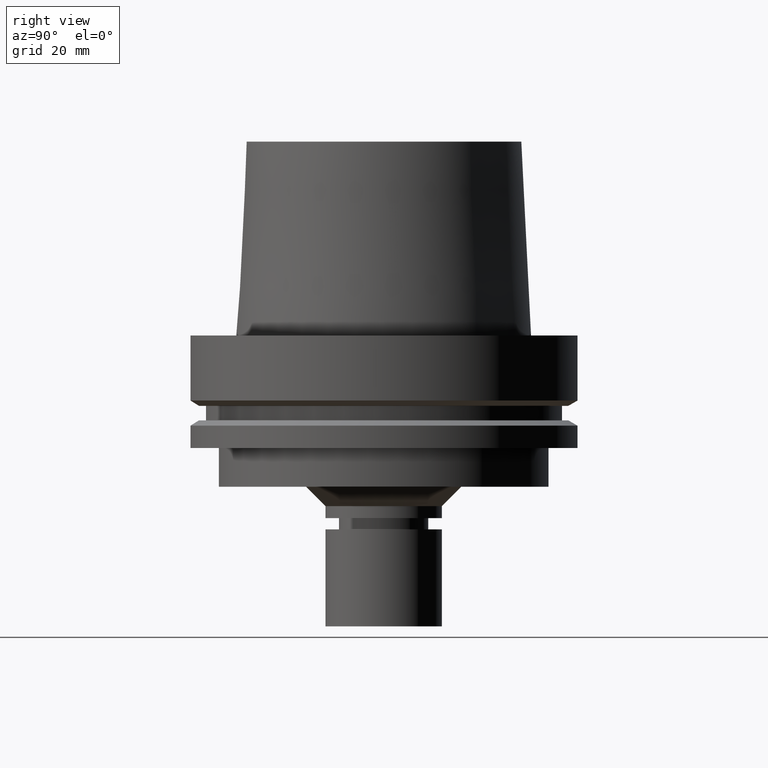
[diagram: clean part render]
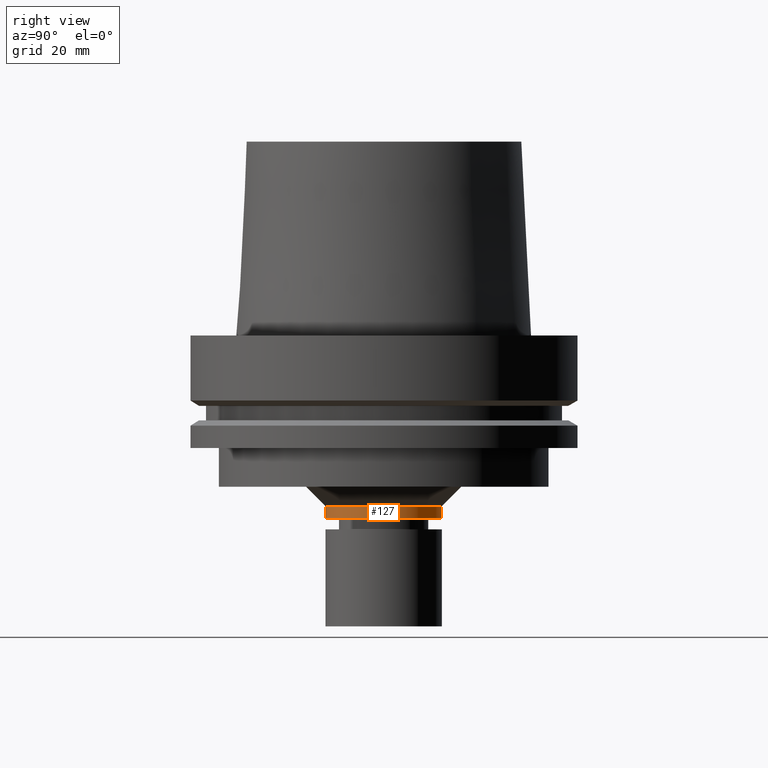
[diagram: same view with one face highlighted and labeled with its STEP entity id]
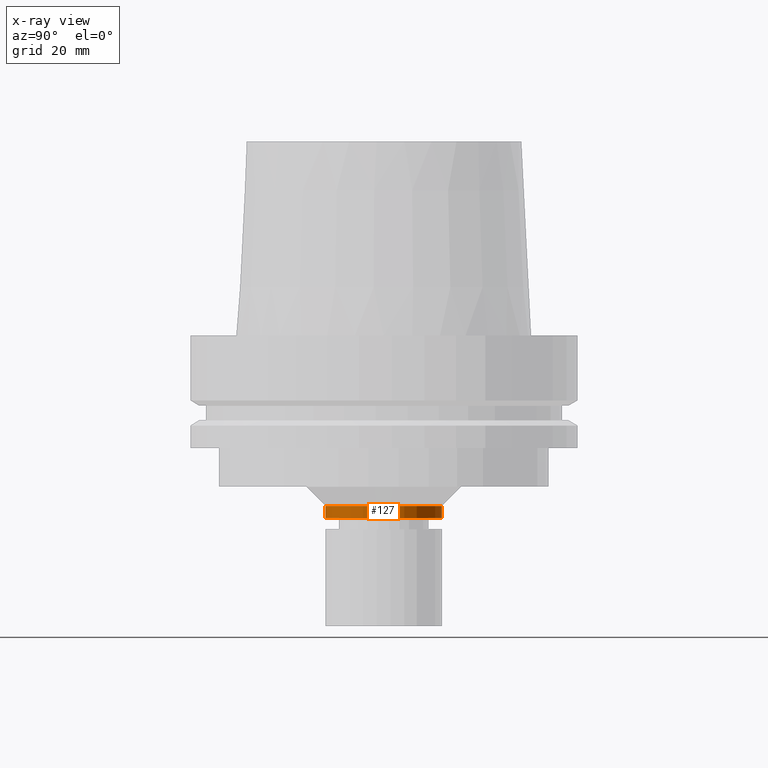
[diagram: x-ray of the same camera — body ghosted, the highlighted face saturated]
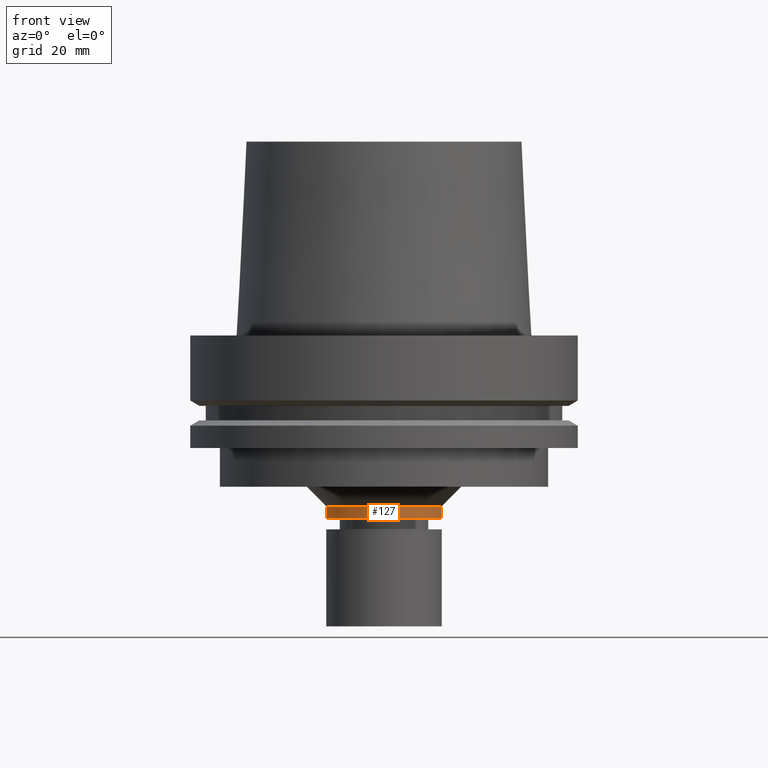
[diagram: same view with one face highlighted and labeled with its STEP entity id]
A machine part, right view. The second image highlights one B-rep face of the part: STEP entity #127.
The next image is the same camera in x-ray: the body ghosted, the highlighted face saturated — about 0% of this face is hidden behind the body in this view.
A second angle (front view) of the same face is appended — the face is thin or edge-on in the first view.
In plain terms, the highlighted cylindrical surface (bore or boss wall) has radius 15 mm, axis along (0, 0, -1).
Its self-contained STEP definition (entity closure, byte-faithful):
#95=EDGE_CURVE('Unnamed[1]',#245,#245,#246,.T.);
#115=EDGE_CURVE('Unnamed[1]',#275,#275,#276,.T.);
#127=ADVANCED_FACE('Unnamed[1]',(#293,#294),#295,.T.);
#245=VERTEX_POINT('',#450);
#246=CIRCLE('',#451,15.0);
#275=VERTEX_POINT('',#487);
#276=CIRCLE('',#488,15.0);
#293=FACE_BOUND('',#510,.T.);
#294=FACE_BOUND('',#511,.T.);
#295=CYLINDRICAL_SURFACE('',#512,15.0);
#450=CARTESIAN_POINT('',(2.69422295812418E-015,15.0,-44.0));
#451=AXIS2_PLACEMENT_3D('',#682,#683,#684);
#487=CARTESIAN_POINT('',(2.88404321199198E-015,15.0,-47.0999999999993));
#488=AXIS2_PLACEMENT_3D('',#713,#714,#715);
#510=EDGE_LOOP('',(#732));
#511=EDGE_LOOP('',(#733));
#512=AXIS2_PLACEMENT_3D('',#734,#735,#736);
#682=CARTESIAN_POINT('',(2.69422295812418E-015,5.38844591624835E-015,-44.0));
#683=DIRECTION('',(6.12323399573677E-017,1.22464679914735E-016,-1.0));
#684=DIRECTION('',(-1.23259516440783E-032,1.0,1.22464679914735E-016));
#713=CARTESIAN_POINT('',(2.88404321199198E-015,5.76808642398395E-015,-47.0999999999993));
#714=DIRECTION('',(6.12323399573677E-017,1.22464679914735E-016,-1.0));
#715=DIRECTION('',(-1.23259516440783E-032,1.0,1.22464679914735E-016));
#732=ORIENTED_EDGE('',*,*,#115,.F.);
#733=ORIENTED_EDGE('',*,*,#95,.T.);
#734=CARTESIAN_POINT('',(2.78913308505808E-015,5.57826617011615E-015,-45.5499999999997));
#735=DIRECTION('',(6.12323399573677E-017,1.22464679914735E-016,-1.0));
#736=DIRECTION('',(-1.23259516440783E-032,1.0,1.22464679914735E-016));